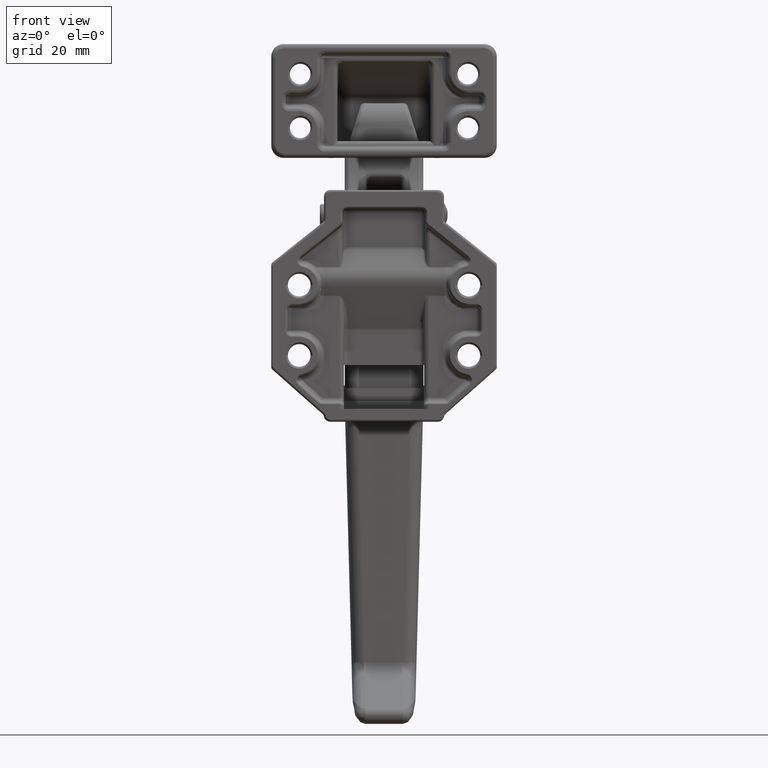
[diagram: clean part render]
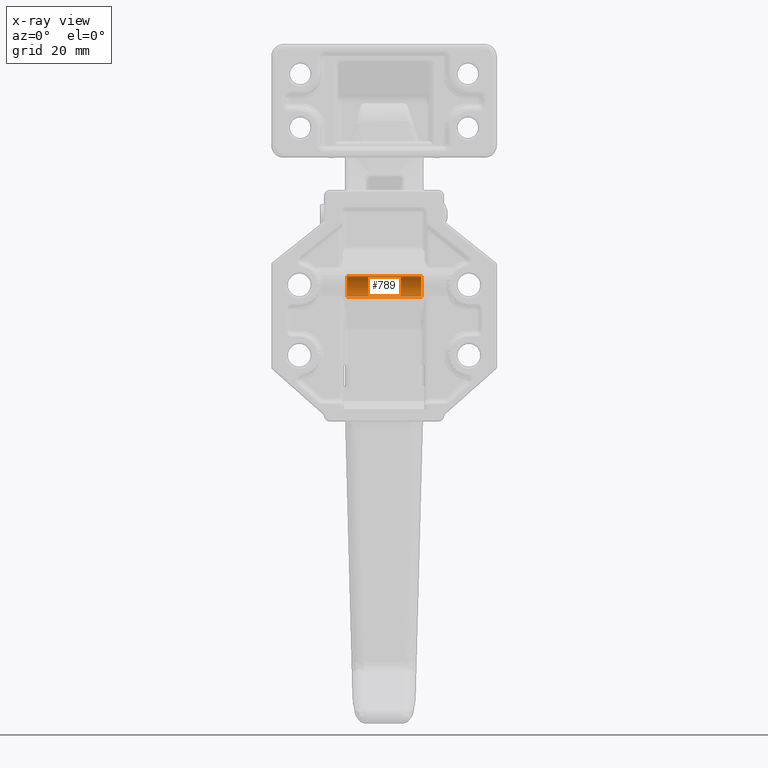
[diagram: x-ray — body ghosted, one internal face saturated and labeled with its STEP entity id]
A machine part, front view, then the same camera in x-ray: the body is ghosted and one INTERNAL B-rep face — a face not visible from any outside direction — is saturated and labeled: STEP entity #789.
In plain terms, the highlighted cylindrical surface (edge-blend (fillet) strip) has radius 2.5 mm, axis along (-1, 0, 0).
Its self-contained STEP definition (entity closure, byte-faithful):
#789=ADVANCED_FACE('',(#6359),#6358,.F.);
#6358=CYLINDRICAL_SURFACE('',#18978,2.49999999995E+000);
#6359=FACE_OUTER_BOUND('',#18979,.T.);
#18975=CARTESIAN_POINT('',(-9.90500000000E+002,0.00000000000E+000,-2.04430000000E-002));
#18976=DIRECTION('',(-1.00000000000E+000,-0.00000000000E+000,0.00000000000E+000));
#18977=DIRECTION('',(0.00000000000E+000,-0.00000000000E+000,1.00000000000E+000));
#18978=AXIS2_PLACEMENT_3D('',#18975,#18976,#18977);
#18979=EDGE_LOOP('',(#26348,#26349,#26350,#26351));
#26348=ORIENTED_EDGE('',*,*,#29191,.T.);
#26349=ORIENTED_EDGE('',*,*,#29192,.T.);
#26350=ORIENTED_EDGE('',*,*,#29181,.T.);
#26351=ORIENTED_EDGE('',*,*,#29193,.F.);
#29181=EDGE_CURVE('',#38195,#38196,#38197,.T.);
#29191=EDGE_CURVE('',#38259,#38260,#38261,.T.);
#29192=EDGE_CURVE('',#38260,#38195,#38267,.T.);
#29193=EDGE_CURVE('',#38259,#38196,#38273,.T.);
#38195=VERTEX_POINT('',#50542);
#38196=VERTEX_POINT('',#50543);
#38197=CIRCLE('',#50547,2.49999999995E+000);
#38259=VERTEX_POINT('',#50574);
#38260=VERTEX_POINT('',#50575);
#38261=CIRCLE('',#50579,2.49999999995E+000);
#38267=(BOUNDED_CURVE() B_SPLINE_CURVE(1,(#50580,#50581),.UNSPECIFIED.,.F.,.F.) B_SPLINE_CURVE_WITH_KNOTS((2,2),(8.33333328360E-002,9.16666665505E-001),.UNSPECIFIED.) CURVE() GEOMETRIC_REPRESENTATION_ITEM() RATIONAL_B_SPLINE_CURVE((1.00000000000E+000,1.00000000000E+000)) REPRESENTATION_ITEM('') );
#38273=(BOUNDED_CURVE() B_SPLINE_CURVE(1,(#50582,#50583),.UNSPECIFIED.,.F.,.F.) B_SPLINE_CURVE_WITH_KNOTS((2,2),(8.33333333333E-002,9.16666666667E-001),.UNSPECIFIED.) CURVE() GEOMETRIC_REPRESENTATION_ITEM() RATIONAL_B_SPLINE_CURVE((7.50000000000E-001,7.50000000000E-001)) REPRESENTATION_ITEM('') );
#50542=CARTESIAN_POINT('',(-9.00000000000E+000,2.96059473233E-016,2.47955699995E+000));
#50543=CARTESIAN_POINT('',(-9.00000000000E+000,0.00000000000E+000,-2.52044299995E+000));
#50544=CARTESIAN_POINT('',(-9.00000000000E+000,0.00000000000E+000,-2.04430000000E-002));
#50545=DIRECTION('',(-1.00000000000E+000,0.00000000000E+000,-0.00000000000E+000));
#50546=DIRECTION('',(0.00000000000E+000,-1.22460635382E-016,-1.00000000000E+000));
#50547=AXIS2_PLACEMENT_3D('',#50544,#50545,#50546);
#50574=CARTESIAN_POINT('',(9.00000000000E+000,0.00000000000E+000,-2.52044299995E+000));
#50575=CARTESIAN_POINT('',(9.00000000000E+000,1.48029736617E-016,2.47955699995E+000));
#50576=CARTESIAN_POINT('',(9.00000000000E+000,0.00000000000E+000,-2.04430000000E-002));
#50577=DIRECTION('',(1.00000000000E+000,0.00000000000E+000,0.00000000000E+000));
#50578=DIRECTION('',(0.00000000000E+000,-1.22460635382E-016,-1.00000000000E+000));
#50579=AXIS2_PLACEMENT_3D('',#50576,#50577,#50578);
#50580=CARTESIAN_POINT('',(9.00000001074E+000,0.00000000000E+000,2.47955699995E+000));
#50581=CARTESIAN_POINT('',(-8.99999997490E+000,0.00000000000E+000,2.47955699995E+000));
#50582=CARTESIAN_POINT('',(9.00000000000E+000,-1.48029736617E-016,-2.52044299995E+000));
#50583=CARTESIAN_POINT('',(-9.00000000000E+000,-1.48029736617E-016,-2.52044299995E+000));